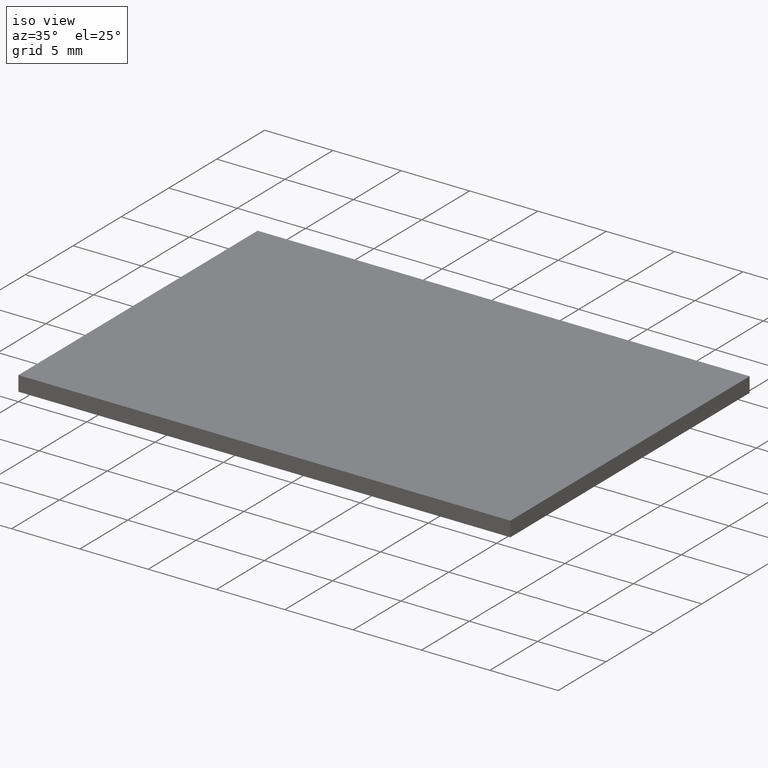
[diagram: clean part render]
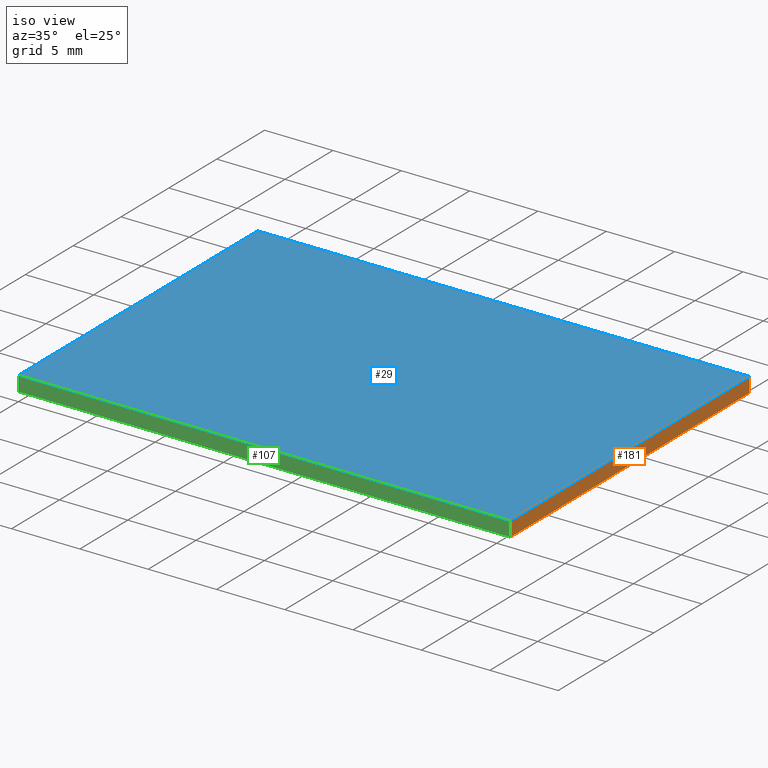
[diagram: same view with three faces highlighted in distinct colors, each labeled with its STEP entity id]
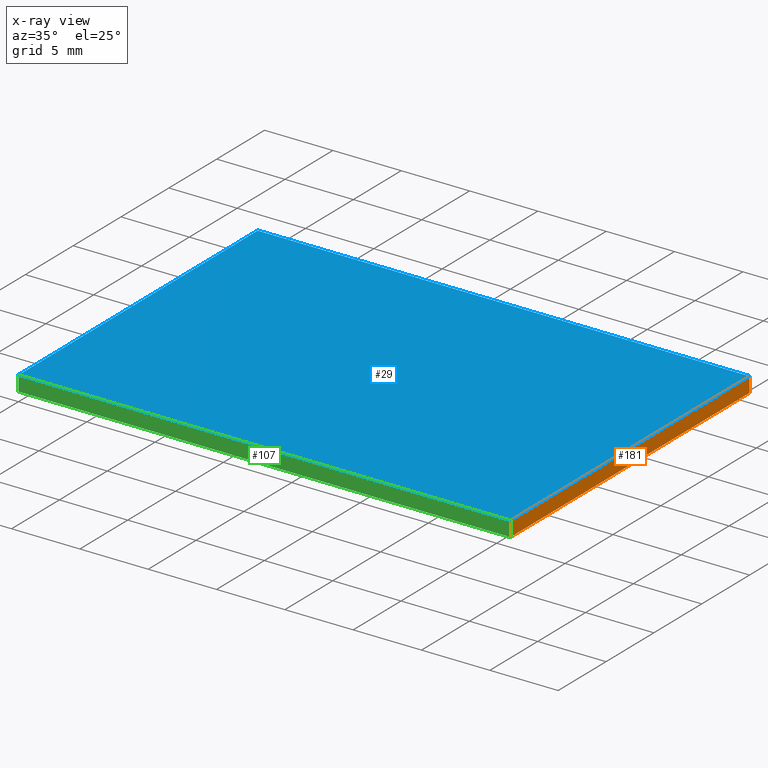
[diagram: x-ray of the same camera — body ghosted, the three highlighted faces saturated]
A machine part, iso view with three faces highlighted in distinct colors.
The next image is the same camera in x-ray (body ghosted, the three faces saturated) — at least one of them is partly hidden behind the body in this view.
Their STEP definitions:

[orange] entity #181 — the highlighted planar face has unit normal (-1, 0, 0).
#2 = ORIENTED_EDGE ( 'NONE', *, *, #42, .F. ) ;
#3 = ORIENTED_EDGE ( 'NONE', *, *, #64, .T. ) ;
#8 = AXIS2_PLACEMENT_3D ( 'NONE', #130, #197, #164 ) ;
#9 = DIRECTION ( 'NONE',  ( -0.000000000000000000, -0.000000000000000000, -1.000000000000000000 ) ) ;
#14 = DIRECTION ( 'NONE',  ( 0.000000000000000000, 1.000000000000000000, 0.000000000000000000 ) ) ;
#20 = CARTESIAN_POINT ( 'NONE',  ( 36.00000000000000000, 0.000000000000000000, 1.100000000000000089 ) ) ;
#30 = DIRECTION ( 'NONE',  ( 0.000000000000000000, 1.000000000000000000, 0.000000000000000000 ) ) ;
#36 = CARTESIAN_POINT ( 'NONE',  ( 36.00000000000000000, 0.000000000000000000, 0.000000000000000000 ) ) ;
#42 = EDGE_CURVE ( 'NONE', #157, #79, #167, .T. ) ;
#46 = ORIENTED_EDGE ( 'NONE', *, *, #100, .F. ) ;
#47 = CARTESIAN_POINT ( 'NONE',  ( 36.00000000000000000, 25.00000000000000000, 1.100000000000000089 ) ) ;
#50 = DIRECTION ( 'NONE',  ( -0.000000000000000000, -0.000000000000000000, -1.000000000000000000 ) ) ;
#64 = EDGE_CURVE ( 'NONE', #185, #141, #182, .T. ) ;
#79 = VERTEX_POINT ( 'NONE', #47 ) ;
#85 = CARTESIAN_POINT ( 'NONE',  ( 36.00000000000000000, 25.00000000000000000, 0.000000000000000000 ) ) ;
#89 = VECTOR ( 'NONE', #9, 1000.000000000000000 ) ;
#90 = CARTESIAN_POINT ( 'NONE',  ( 36.00000000000000000, 0.000000000000000000, 0.000000000000000000 ) ) ;
#94 = VECTOR ( 'NONE', #30, 1000.000000000000000 ) ;
#100 = EDGE_CURVE ( 'NONE', #79, #141, #162, .T. ) ;
#104 = ORIENTED_EDGE ( 'NONE', *, *, #115, .T. ) ;
#106 = EDGE_LOOP ( 'NONE', ( #3, #46, #2, #104 ) ) ;
#115 = EDGE_CURVE ( 'NONE', #157, #185, #117, .T. ) ;
#117 = LINE ( 'NONE', #143, #89 ) ;
#119 = VECTOR ( 'NONE', #50, 1000.000000000000000 ) ;
#130 = CARTESIAN_POINT ( 'NONE',  ( 36.00000000000000000, 0.000000000000000000, 1.100000000000000089 ) ) ;
#141 = VERTEX_POINT ( 'NONE', #85 ) ;
#143 = CARTESIAN_POINT ( 'NONE',  ( 36.00000000000000000, 0.000000000000000000, 1.100000000000000089 ) ) ;
#145 = PLANE ( 'NONE',  #8 ) ;
#157 = VERTEX_POINT ( 'NONE', #20 ) ;
#162 = LINE ( 'NONE', #163, #119 ) ;
#163 = CARTESIAN_POINT ( 'NONE',  ( 36.00000000000000000, 25.00000000000000000, 1.100000000000000089 ) ) ;
#164 = DIRECTION ( 'NONE',  ( 0.000000000000000000, 0.000000000000000000, 1.000000000000000000 ) ) ;
#167 = LINE ( 'NONE', #201, #94 ) ;
#181 = ADVANCED_FACE ( 'NONE', ( #191 ), #145, .F. ) ;
#182 = LINE ( 'NONE', #90, #196 ) ;
#185 = VERTEX_POINT ( 'NONE', #36 ) ;
#191 = FACE_OUTER_BOUND ( 'NONE', #106, .T. ) ;
#196 = VECTOR ( 'NONE', #14, 1000.000000000000000 ) ;
#197 = DIRECTION ( 'NONE',  ( -1.000000000000000000, 0.000000000000000000, 0.000000000000000000 ) ) ;
#201 = CARTESIAN_POINT ( 'NONE',  ( 36.00000000000000000, 0.000000000000000000, 1.100000000000000089 ) ) ;

[blue] entity #29 — the highlighted planar face has unit normal (0, 0, -1).
#1 = CARTESIAN_POINT ( 'NONE',  ( 0.000000000000000000, 0.000000000000000000, 1.100000000000000089 ) ) ;
#13 = VECTOR ( 'NONE', #151, 1000.000000000000000 ) ;
#20 = CARTESIAN_POINT ( 'NONE',  ( 36.00000000000000000, 0.000000000000000000, 1.100000000000000089 ) ) ;
#23 = CARTESIAN_POINT ( 'NONE',  ( 0.000000000000000000, 0.000000000000000000, 1.100000000000000089 ) ) ;
#27 = CARTESIAN_POINT ( 'NONE',  ( 0.000000000000000000, 25.00000000000000000, 1.100000000000000089 ) ) ;
#29 = ADVANCED_FACE ( 'NONE', ( #103 ), #54, .F. ) ;
#30 = DIRECTION ( 'NONE',  ( 0.000000000000000000, 1.000000000000000000, 0.000000000000000000 ) ) ;
#37 = EDGE_CURVE ( 'NONE', #93, #135, #171, .T. ) ;
#41 = DIRECTION ( 'NONE',  ( -1.000000000000000000, 0.000000000000000000, -0.000000000000000000 ) ) ;
#42 = EDGE_CURVE ( 'NONE', #157, #79, #167, .T. ) ;
#47 = CARTESIAN_POINT ( 'NONE',  ( 36.00000000000000000, 25.00000000000000000, 1.100000000000000089 ) ) ;
#51 = AXIS2_PLACEMENT_3D ( 'NONE', #152, #137, #41 ) ;
#54 = PLANE ( 'NONE',  #51 ) ;
#56 = EDGE_CURVE ( 'NONE', #79, #93, #120, .T. ) ;
#58 = EDGE_LOOP ( 'NONE', ( #121, #138, #186, #91 ) ) ;
#67 = CARTESIAN_POINT ( 'NONE',  ( 0.000000000000000000, 25.00000000000000000, 1.100000000000000089 ) ) ;
#77 = VECTOR ( 'NONE', #179, 1000.000000000000000 ) ;
#79 = VERTEX_POINT ( 'NONE', #47 ) ;
#84 = CARTESIAN_POINT ( 'NONE',  ( 0.000000000000000000, 0.000000000000000000, 1.100000000000000089 ) ) ;
#91 = ORIENTED_EDGE ( 'NONE', *, *, #56, .T. ) ;
#93 = VERTEX_POINT ( 'NONE', #67 ) ;
#94 = VECTOR ( 'NONE', #30, 1000.000000000000000 ) ;
#102 = DIRECTION ( 'NONE',  ( -0.000000000000000000, -1.000000000000000000, -0.000000000000000000 ) ) ;
#103 = FACE_OUTER_BOUND ( 'NONE', #58, .T. ) ;
#120 = LINE ( 'NONE', #27, #13 ) ;
#121 = ORIENTED_EDGE ( 'NONE', *, *, #37, .T. ) ;
#135 = VERTEX_POINT ( 'NONE', #23 ) ;
#137 = DIRECTION ( 'NONE',  ( 0.000000000000000000, 0.000000000000000000, -1.000000000000000000 ) ) ;
#138 = ORIENTED_EDGE ( 'NONE', *, *, #168, .T. ) ;
#146 = LINE ( 'NONE', #84, #77 ) ;
#151 = DIRECTION ( 'NONE',  ( -1.000000000000000000, -0.000000000000000000, -0.000000000000000000 ) ) ;
#152 = CARTESIAN_POINT ( 'NONE',  ( 0.000000000000000000, 0.000000000000000000, 1.100000000000000089 ) ) ;
#157 = VERTEX_POINT ( 'NONE', #20 ) ;
#167 = LINE ( 'NONE', #201, #94 ) ;
#168 = EDGE_CURVE ( 'NONE', #135, #157, #146, .T. ) ;
#170 = VECTOR ( 'NONE', #102, 1000.000000000000000 ) ;
#171 = LINE ( 'NONE', #1, #170 ) ;
#179 = DIRECTION ( 'NONE',  ( 1.000000000000000000, 0.000000000000000000, 0.000000000000000000 ) ) ;
#186 = ORIENTED_EDGE ( 'NONE', *, *, #42, .T. ) ;
#201 = CARTESIAN_POINT ( 'NONE',  ( 36.00000000000000000, 0.000000000000000000, 1.100000000000000089 ) ) ;

[green] entity #107 — the highlighted planar face has unit normal (0, 1, 0).
#4 = ORIENTED_EDGE ( 'NONE', *, *, #115, .F. ) ;
#5 = EDGE_CURVE ( 'NONE', #15, #185, #174, .T. ) ;
#9 = DIRECTION ( 'NONE',  ( -0.000000000000000000, -0.000000000000000000, -1.000000000000000000 ) ) ;
#10 = DIRECTION ( 'NONE',  ( -0.000000000000000000, -0.000000000000000000, -1.000000000000000000 ) ) ;
#12 = LINE ( 'NONE', #70, #65 ) ;
#15 = VERTEX_POINT ( 'NONE', #73 ) ;
#16 = EDGE_LOOP ( 'NONE', ( #80, #4, #63, #140 ) ) ;
#17 = VECTOR ( 'NONE', #55, 1000.000000000000000 ) ;
#20 = CARTESIAN_POINT ( 'NONE',  ( 36.00000000000000000, 0.000000000000000000, 1.100000000000000089 ) ) ;
#23 = CARTESIAN_POINT ( 'NONE',  ( 0.000000000000000000, 0.000000000000000000, 1.100000000000000089 ) ) ;
#26 = DIRECTION ( 'NONE',  ( 0.000000000000000000, -0.000000000000000000, 1.000000000000000000 ) ) ;
#33 = CARTESIAN_POINT ( 'NONE',  ( 0.000000000000000000, 0.000000000000000000, 0.000000000000000000 ) ) ;
#36 = CARTESIAN_POINT ( 'NONE',  ( 36.00000000000000000, 0.000000000000000000, 0.000000000000000000 ) ) ;
#39 = PLANE ( 'NONE',  #59 ) ;
#49 = DIRECTION ( 'NONE',  ( 0.000000000000000000, 1.000000000000000000, 0.000000000000000000 ) ) ;
#55 = DIRECTION ( 'NONE',  ( 1.000000000000000000, 0.000000000000000000, 0.000000000000000000 ) ) ;
#59 = AXIS2_PLACEMENT_3D ( 'NONE', #127, #49, #26 ) ;
#63 = ORIENTED_EDGE ( 'NONE', *, *, #168, .F. ) ;
#65 = VECTOR ( 'NONE', #10, 1000.000000000000000 ) ;
#70 = CARTESIAN_POINT ( 'NONE',  ( 0.000000000000000000, 0.000000000000000000, 1.100000000000000089 ) ) ;
#73 = CARTESIAN_POINT ( 'NONE',  ( 0.000000000000000000, 0.000000000000000000, 0.000000000000000000 ) ) ;
#77 = VECTOR ( 'NONE', #179, 1000.000000000000000 ) ;
#80 = ORIENTED_EDGE ( 'NONE', *, *, #5, .T. ) ;
#84 = CARTESIAN_POINT ( 'NONE',  ( 0.000000000000000000, 0.000000000000000000, 1.100000000000000089 ) ) ;
#89 = VECTOR ( 'NONE', #9, 1000.000000000000000 ) ;
#107 = ADVANCED_FACE ( 'NONE', ( #165 ), #39, .F. ) ;
#115 = EDGE_CURVE ( 'NONE', #157, #185, #117, .T. ) ;
#117 = LINE ( 'NONE', #143, #89 ) ;
#127 = CARTESIAN_POINT ( 'NONE',  ( 0.000000000000000000, 0.000000000000000000, 1.100000000000000089 ) ) ;
#129 = EDGE_CURVE ( 'NONE', #135, #15, #12, .T. ) ;
#135 = VERTEX_POINT ( 'NONE', #23 ) ;
#140 = ORIENTED_EDGE ( 'NONE', *, *, #129, .T. ) ;
#143 = CARTESIAN_POINT ( 'NONE',  ( 36.00000000000000000, 0.000000000000000000, 1.100000000000000089 ) ) ;
#146 = LINE ( 'NONE', #84, #77 ) ;
#157 = VERTEX_POINT ( 'NONE', #20 ) ;
#165 = FACE_OUTER_BOUND ( 'NONE', #16, .T. ) ;
#168 = EDGE_CURVE ( 'NONE', #135, #157, #146, .T. ) ;
#174 = LINE ( 'NONE', #33, #17 ) ;
#179 = DIRECTION ( 'NONE',  ( 1.000000000000000000, 0.000000000000000000, 0.000000000000000000 ) ) ;
#185 = VERTEX_POINT ( 'NONE', #36 ) ;